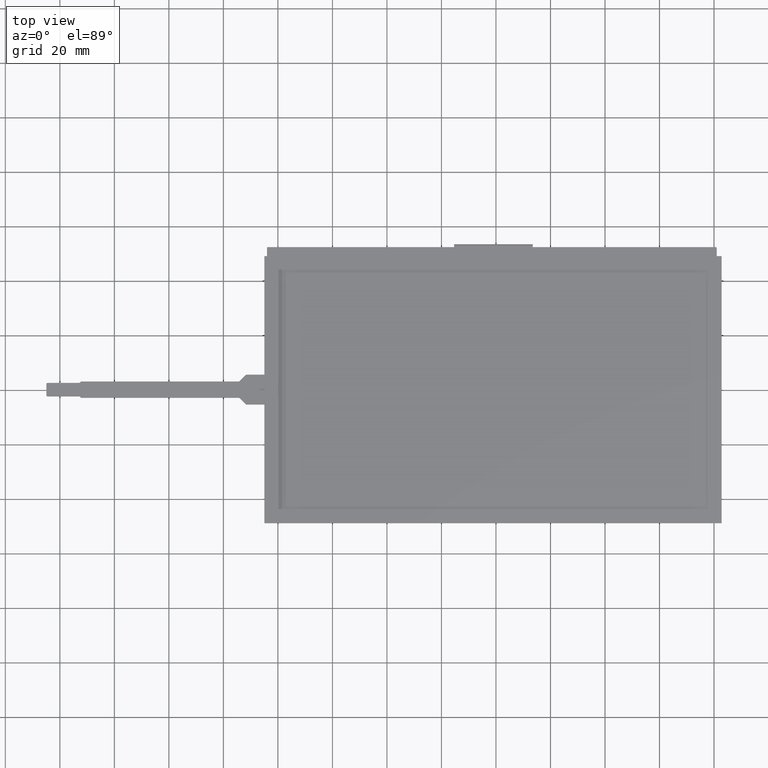
[diagram: clean part render]
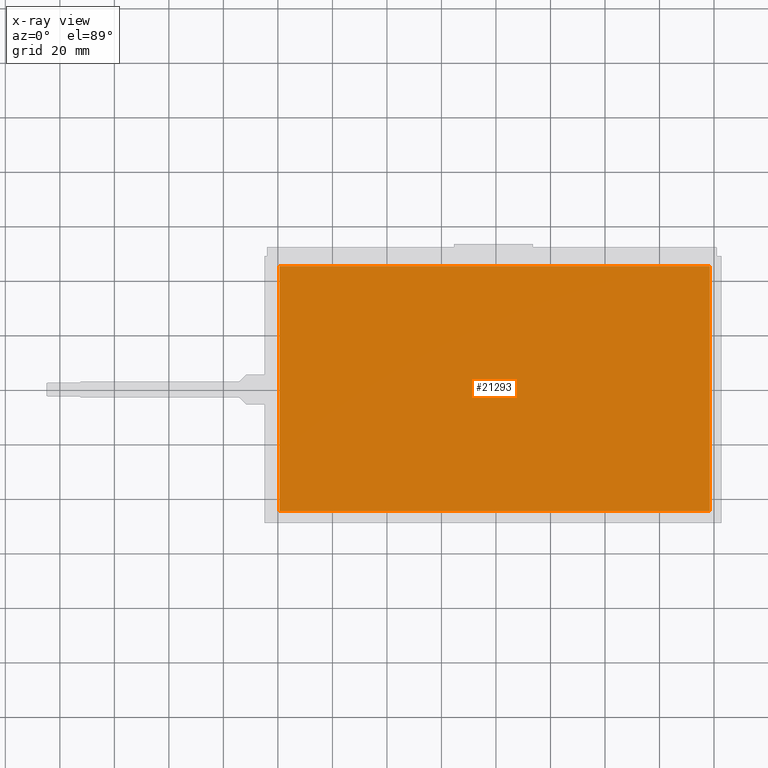
[diagram: x-ray — body ghosted, one internal face saturated and labeled with its STEP entity id]
A machine part, top view, then the same camera in x-ray: the body is ghosted and one INTERNAL B-rep face — a face not visible from any outside direction — is saturated and labeled: STEP entity #21293.
In plain terms, the highlighted planar face has unit normal (0, 0, -1).
Its self-contained STEP definition (entity closure, byte-faithful):
#813=FACE_OUTER_BOUND('',#1954,.T.);
#1954=EDGE_LOOP('',(#14085,#14086,#14087,#14088));
#3216=LINE('',#30118,#5960);
#3218=LINE('',#30123,#5962);
#3222=LINE('',#30131,#5966);
#3223=LINE('',#30132,#5967);
#5960=VECTOR('',#24153,10.);
#5962=VECTOR('',#24157,10.);
#5966=VECTOR('',#24165,10.);
#5967=VECTOR('',#24166,10.);
#8679=VERTEX_POINT('',#30111);
#8682=VERTEX_POINT('',#30116);
#8684=VERTEX_POINT('',#30122);
#8686=VERTEX_POINT('',#30130);
#10800=EDGE_CURVE('',#8679,#8682,#3216,.T.);
#10802=EDGE_CURVE('',#8684,#8679,#3218,.T.);
#10806=EDGE_CURVE('',#8682,#8686,#3222,.T.);
#10807=EDGE_CURVE('',#8686,#8684,#3223,.T.);
#14085=ORIENTED_EDGE('',*,*,#10806,.T.);
#14086=ORIENTED_EDGE('',*,*,#10807,.T.);
#14087=ORIENTED_EDGE('',*,*,#10802,.T.);
#14088=ORIENTED_EDGE('',*,*,#10800,.T.);
#20375=PLANE('',#22454);
#21293=ADVANCED_FACE('',(#813),#20375,.T.);
#22454=AXIS2_PLACEMENT_3D('',#30129,#24163,#24164);
#24153=DIRECTION('',(-1.,9.09895546683141E-48,0.));
#24157=DIRECTION('',(1.75162308040602E-46,-1.,0.));
#24163=DIRECTION('center_axis',(0.,0.,-1.));
#24164=DIRECTION('ref_axis',(-1.,1.20708053394536E-49,0.));
#24165=DIRECTION('',(-7.42461647718078E-16,1.,0.));
#24166=DIRECTION('',(1.,7.42461647718078E-16,0.));
#30111=CARTESIAN_POINT('',(78.485,-44.64,-1.4));
#30116=CARTESIAN_POINT('',(-79.515,-44.64,-1.4));
#30118=CARTESIAN_POINT('',(-40.295,-44.64,-1.4));
#30122=CARTESIAN_POINT('',(78.485,45.3600000000001,-1.40000000000001));
#30123=CARTESIAN_POINT('',(78.485,-22.32,-1.4));
#30129=CARTESIAN_POINT('Origin',(-1.075,1.09129474195454E-49,-1.4));
#30130=CARTESIAN_POINT('',(-79.515,45.3600000000001,-1.4));
#30131=CARTESIAN_POINT('',(-79.515,22.68,-1.4));
#30132=CARTESIAN_POINT('',(38.705,45.36,-1.4));